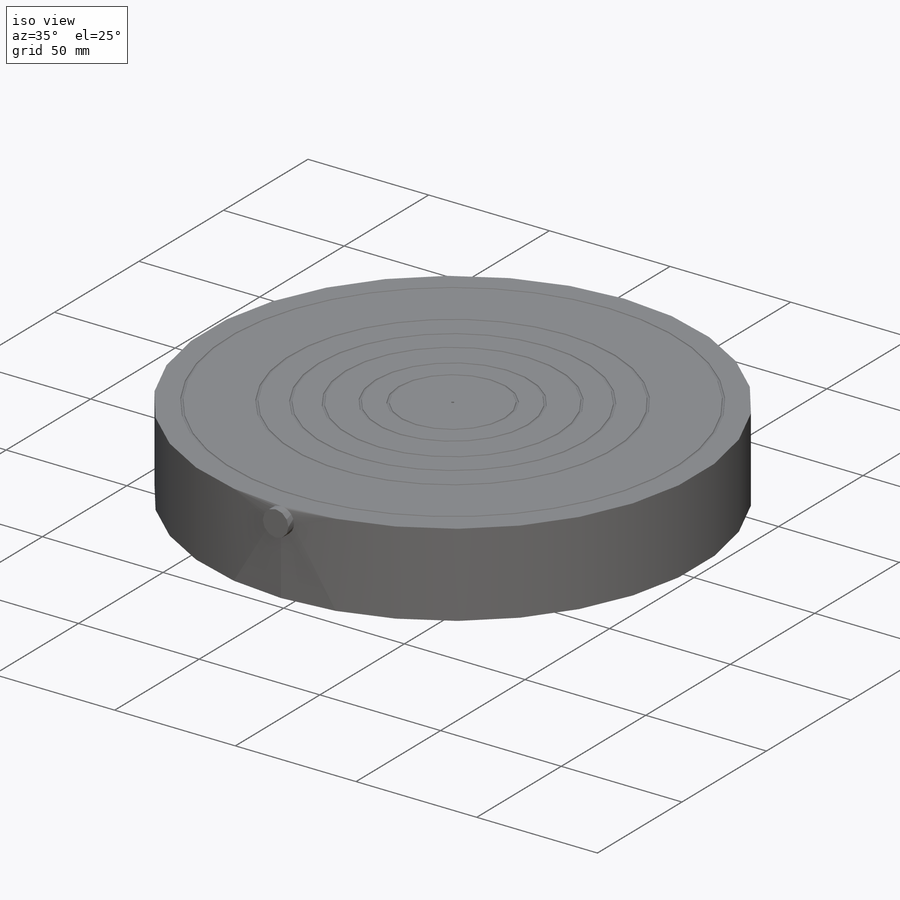
[diagram: iso view]
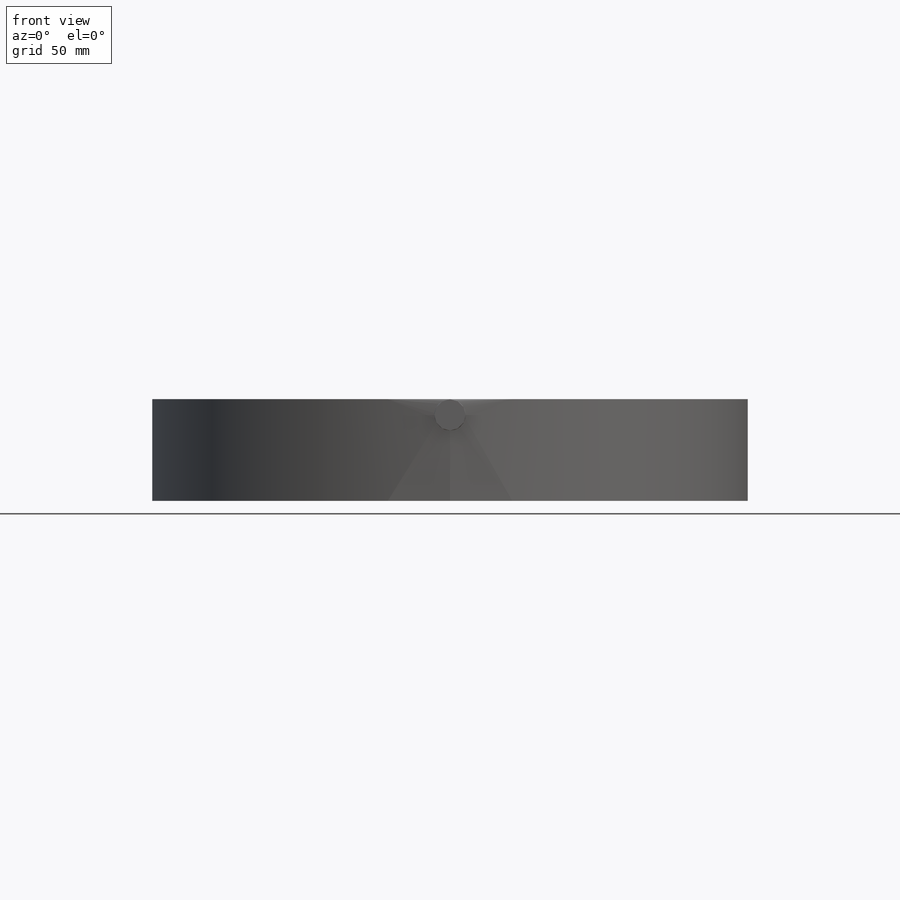
[diagram: front view]
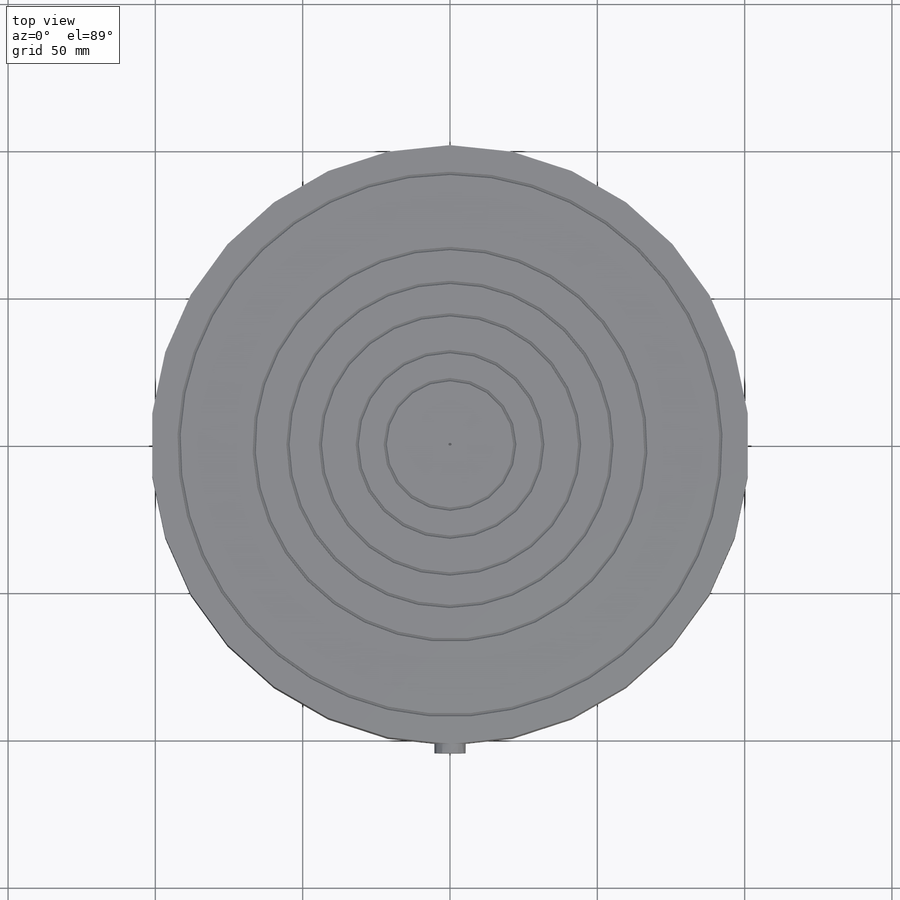
[diagram: top view]
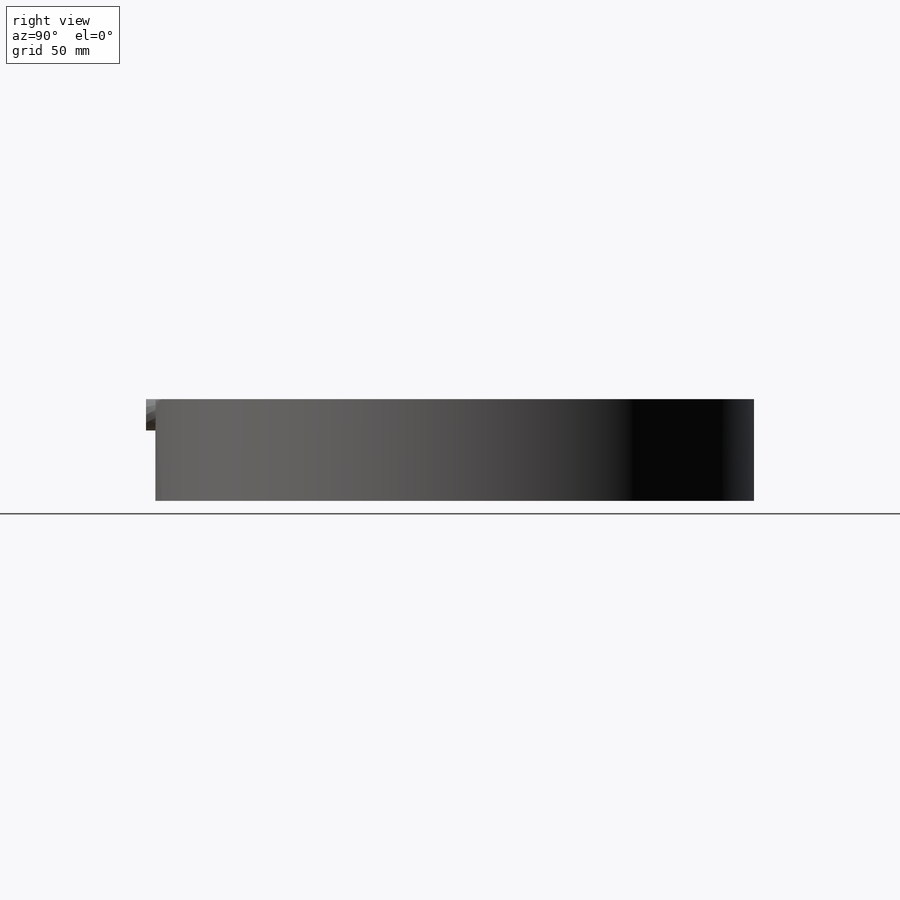
[diagram: right view]
SOLIDWORKS PART (.sldprt)
format: sldprt  version: not decoded by parser v0  size: 241,664 bytes
history: native  units: mm
features: sketch x4, extrude x2, material x1, cut_revolve x1, cut_extrude x1, plane x1 (+11 scaffold rows collapsed)
feature tree (21):
  scaffold x11  (default folders/planes/origin — collapsed)
  material  "Material <not specified>"
  sketch  "Sketch1"  dims[D1=203.2mm]
  extrude  "Extrude1"  Depth=34.5mm
  sketch  "Sketch3"  dims[D8=1.0mm D1=5.0mm D2=92.0mm D3=66.5mm D4=55.0mm D5=44.0mm D6=31.5mm D7=22.0mm]
  cut_revolve  "Cut-Revolve1"  Angle=360deg
  sketch  "Sketch4"  dims[D1=1.0mm]
  cut_extrude  "Extrude2"  Depth=1mm
  plane  "Plane1"  Offset=104.78mm
  sketch  "Sketch5"  dims[D1=10.63mm]
  extrude  "Extrude3"  Depth=10mm
decode coverage: 8 of 8 modeling features carry decoded parameters
note: suppression state not decoded; provenance and decode notes live in map.json
